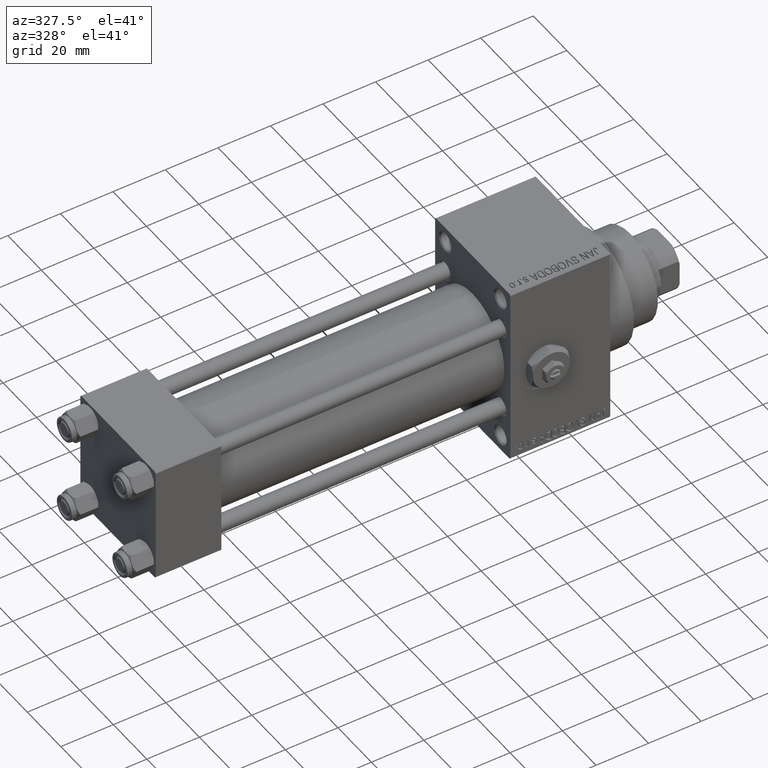
[diagram: clean part render]
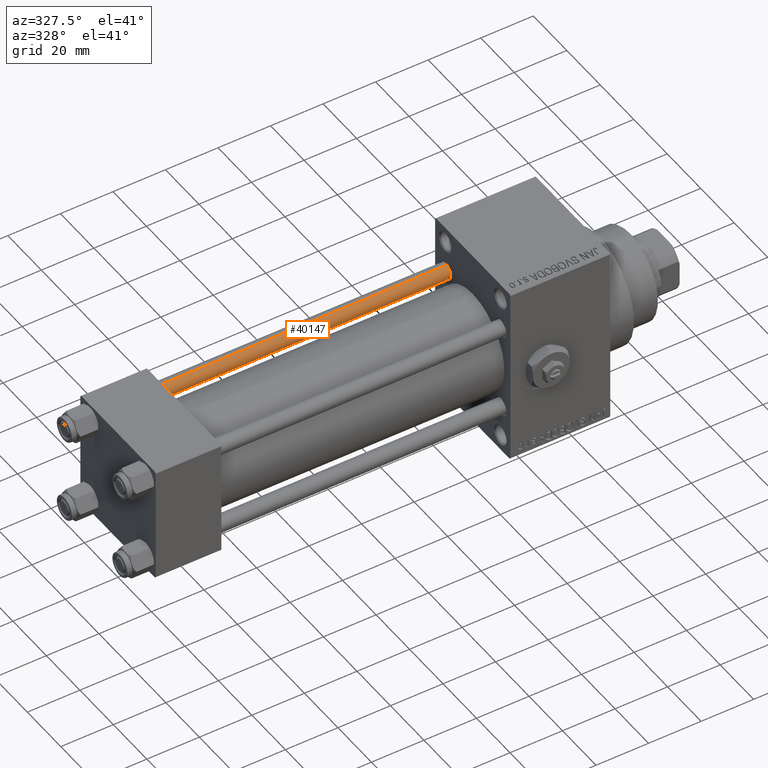
[diagram: same view with one face highlighted and labeled with its STEP entity id]
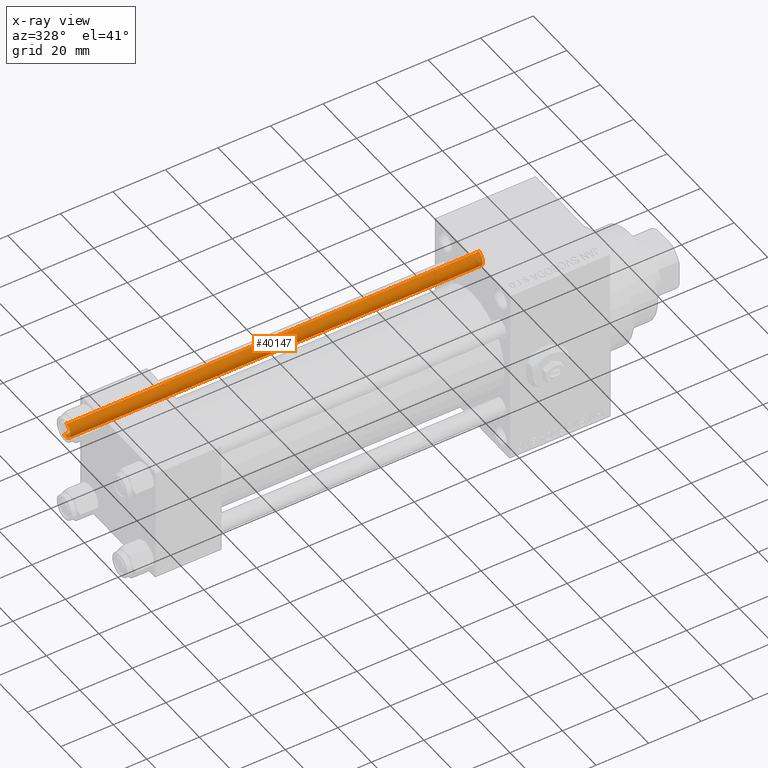
[diagram: x-ray of the same camera — body ghosted, the highlighted face saturated]
A machine part, auxiliary view. The second image highlights one B-rep face of the part: STEP entity #40147.
The next image is the same camera in x-ray: the body ghosted, the highlighted face saturated — about 1% of this face is hidden behind the body in this view.
In plain terms, the highlighted cylindrical surface (edge-blend (fillet) strip) has radius 3 mm, axis along (-1, -0, 0).
Its self-contained STEP definition (entity closure, byte-faithful):
#979 = CARTESIAN_POINT ( 'NONE',  ( 0.000000000000000000, 0.000000000000000000, 0.5000000000000281997 ) ) ;
#1893 = CARTESIAN_POINT ( 'NONE',  ( -3.000000000000000444, 0.000000000000000000, 157.5000000000000000 ) ) ;
#3755 = EDGE_CURVE ( 'NONE', #43535, #8288, #8418, .T. ) ;
#4626 = VECTOR ( 'NONE', #13686, 1000.000000000000000 ) ;
#6793 = EDGE_LOOP ( 'NONE', ( #24274, #37541, #10373, #30099 ) ) ;
#7032 = CIRCLE ( 'NONE', #16493, 3.000000000000000444 ) ;
#8288 = VERTEX_POINT ( 'NONE', #1893 ) ;
#8418 = CIRCLE ( 'NONE', #41485, 3.000000000000000444 ) ;
#8538 = CARTESIAN_POINT ( 'NONE',  ( 3.000000000000000444, 3.673940397442060361E-16, 157.5000000000000000 ) ) ;
#10373 = ORIENTED_EDGE ( 'NONE', *, *, #32732, .T. ) ;
#13476 = EDGE_CURVE ( 'NONE', #19683, #33101, #7032, .T. ) ;
#13686 = DIRECTION ( 'NONE',  ( -0.000000000000000000, -0.000000000000000000, -1.000000000000000000 ) ) ;
#15923 = DIRECTION ( 'NONE',  ( 1.000000000000000000, 0.000000000000000000, 0.000000000000000000 ) ) ;
#15959 = DIRECTION ( 'NONE',  ( -0.000000000000000000, -0.000000000000000000, -1.000000000000000000 ) ) ;
#16493 = AXIS2_PLACEMENT_3D ( 'NONE', #979, #46835, #20733 ) ;
#17415 = LINE ( 'NONE', #47454, #4626 ) ;
#18088 = CARTESIAN_POINT ( 'NONE',  ( 3.000000000000000444, 3.673940397442060361E-16, 0.5000000000000281997 ) ) ;
#18695 = VECTOR ( 'NONE', #15959, 1000.000000000000000 ) ;
#19683 = VERTEX_POINT ( 'NONE', #48061 ) ;
#19931 = CYLINDRICAL_SURFACE ( 'NONE', #39461, 3.000000000000000444 ) ;
#20733 = DIRECTION ( 'NONE',  ( 1.000000000000000000, 0.000000000000000000, 0.000000000000000000 ) ) ;
#23879 = DIRECTION ( 'NONE',  ( -1.000000000000000000, 0.000000000000000000, 0.000000000000000000 ) ) ;
#24274 = ORIENTED_EDGE ( 'NONE', *, *, #29135, .F. ) ;
#24335 = CARTESIAN_POINT ( 'NONE',  ( 3.000000000000000444, 3.673940397442060361E-16, 158.0000000000000000 ) ) ;
#29135 = EDGE_CURVE ( 'NONE', #43535, #33101, #31015, .T. ) ;
#30099 = ORIENTED_EDGE ( 'NONE', *, *, #13476, .T. ) ;
#31015 = LINE ( 'NONE', #24335, #18695 ) ;
#32732 = EDGE_CURVE ( 'NONE', #8288, #19683, #17415, .T. ) ;
#33101 = VERTEX_POINT ( 'NONE', #18088 ) ;
#34683 = CARTESIAN_POINT ( 'NONE',  ( 0.000000000000000000, 0.000000000000000000, 157.5000000000000000 ) ) ;
#35169 = DIRECTION ( 'NONE',  ( 0.000000000000000000, 0.000000000000000000, -1.000000000000000000 ) ) ;
#35220 = FACE_OUTER_BOUND ( 'NONE', #6793, .T. ) ;
#35945 = DIRECTION ( 'NONE',  ( -0.000000000000000000, -0.000000000000000000, -1.000000000000000000 ) ) ;
#37541 = ORIENTED_EDGE ( 'NONE', *, *, #3755, .T. ) ;
#39461 = AXIS2_PLACEMENT_3D ( 'NONE', #47246, #35945, #23879 ) ;
#40147 = ADVANCED_FACE ( 'NONE', ( #35220 ), #19931, .T. ) ;
#41485 = AXIS2_PLACEMENT_3D ( 'NONE', #34683, #35169, #15923 ) ;
#43535 = VERTEX_POINT ( 'NONE', #8538 ) ;
#46835 = DIRECTION ( 'NONE',  ( -0.000000000000000000, -0.000000000000000000, 1.000000000000000000 ) ) ;
#47246 = CARTESIAN_POINT ( 'NONE',  ( 0.000000000000000000, 0.000000000000000000, 158.0000000000000000 ) ) ;
#47454 = CARTESIAN_POINT ( 'NONE',  ( -3.000000000000000444, 0.000000000000000000, 158.0000000000000000 ) ) ;
#48061 = CARTESIAN_POINT ( 'NONE',  ( -3.000000000000000444, 0.000000000000000000, 0.5000000000000281997 ) ) ;